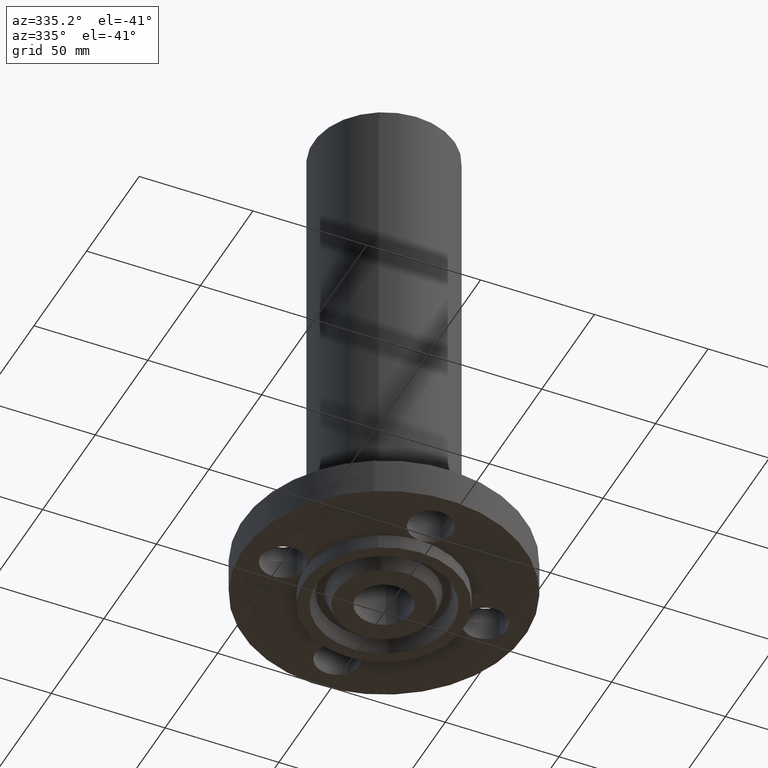
[diagram: clean part render]
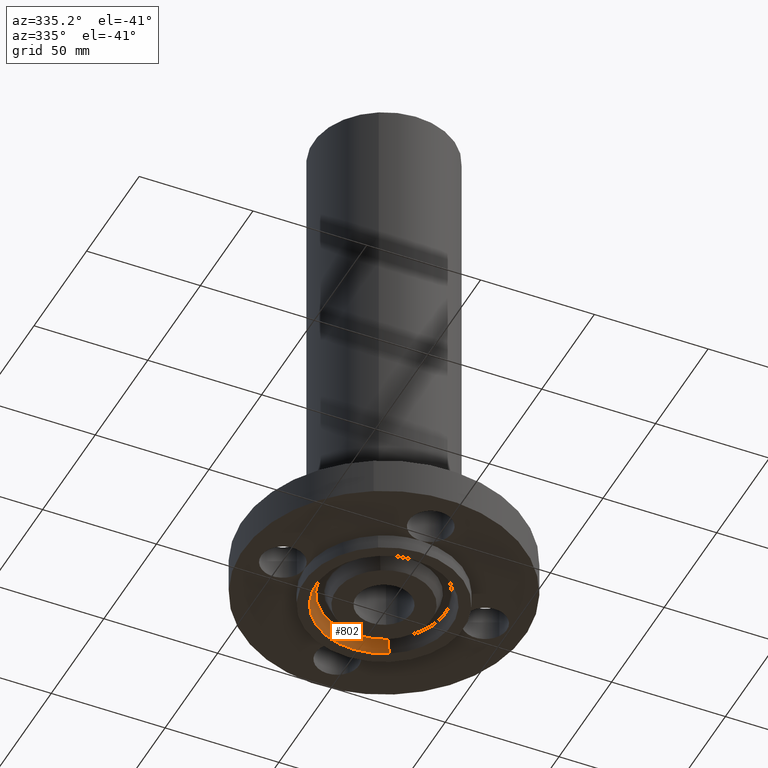
[diagram: same view with one face highlighted and labeled with its STEP entity id]
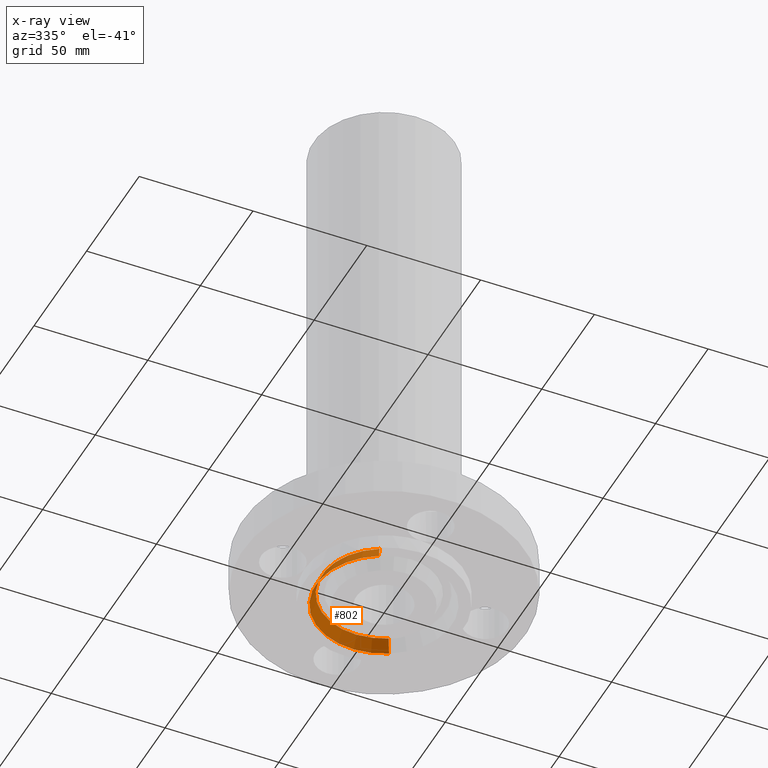
[diagram: x-ray of the same camera — body ghosted, the highlighted face saturated]
A machine part, auxiliary view. The second image highlights one B-rep face of the part: STEP entity #802.
The next image is the same camera in x-ray: the body ghosted, the highlighted face saturated — about 0% of this face is hidden behind the body in this view.
In plain terms, the highlighted conical surface has half-angle 23 deg.
Its self-contained STEP definition (entity closure, byte-faithful):
#743=AXIS2_PLACEMENT_3D('Circle Axis2P3D',#741,#742,$) ;
#775=AXIS2_PLACEMENT_3D('Cone Axis2P3D',#772,#773,#774) ;
#786=AXIS2_PLACEMENT_3D('Circle Axis2P3D',#784,#785,$) ;
#738=CARTESIAN_POINT('Vertex',(-0.514854363898,-0.942434591585,-0.0188873350169)) ;
#741=CARTESIAN_POINT('Axis2P3D Location',(0.,0.,-0.0188873350169)) ;
#745=CARTESIAN_POINT('Vertex',(0.514854363898,0.942434591585,-0.0188873350169)) ;
#772=CARTESIAN_POINT('Axis2P3D Location',(0.,0.,-0.0188873350169)) ;
#777=CARTESIAN_POINT('Line Origine',(-0.538370547572,-0.985480677062,-0.134443667509)) ;
#781=CARTESIAN_POINT('Vertex',(-0.561886731246,-1.02852676254,-0.250000000001)) ;
#784=CARTESIAN_POINT('Axis2P3D Location',(0.,0.,-0.250000000001)) ;
#788=CARTESIAN_POINT('Vertex',(0.561886731246,1.02852676254,-0.250000000001)) ;
#791=CARTESIAN_POINT('Line Origine',(0.538370547572,0.985480677062,-0.134443667509)) ;
#742=DIRECTION('Axis2P3D Direction',(0.,0.,-0.0393700787402)) ;
#773=DIRECTION('Axis2P3D Direction',(0.,0.,-0.0393700787402)) ;
#774=DIRECTION('Axis2P3D XDirection',(0.0188750212049,0.0345504945626,0.)) ;
#778=DIRECTION('Vector Direction',(-0.00737505833565,-0.0134999537303,-0.0362403485611)) ;
#785=DIRECTION('Axis2P3D Direction',(0.,0.,-0.0393700787402)) ;
#792=DIRECTION('Vector Direction',(0.00737505833565,0.0134999537303,-0.0362403485611)) ;
#779=VECTOR('Line Direction',#778,0.0393700787402) ;
#793=VECTOR('Line Direction',#792,0.0393700787402) ;
#797=ORIENTED_EDGE('',*,*,#747,.F.) ;
#798=ORIENTED_EDGE('',*,*,#783,.T.) ;
#799=ORIENTED_EDGE('',*,*,#790,.T.) ;
#800=ORIENTED_EDGE('',*,*,#795,.F.) ;
#802=ADVANCED_FACE('PartBody',(#801),#776,.F.) ;
#744=CIRCLE('generated circle',#743,1.07389849401) ;
#787=CIRCLE('generated circle',#786,1.172) ;
#776=CONICAL_SURFACE('Cone',#775,1.07389849401,0.401425727959) ;
#747=EDGE_CURVE('',#739,#746,#744,.T.) ;
#783=EDGE_CURVE('',#739,#782,#780,.T.) ;
#790=EDGE_CURVE('',#782,#789,#787,.T.) ;
#795=EDGE_CURVE('',#746,#789,#794,.T.) ;
#796=EDGE_LOOP('',(#797,#798,#799,#800)) ;
#801=FACE_OUTER_BOUND('',#796,.T.) ;
#780=LINE('Line',#777,#779) ;
#794=LINE('Line',#791,#793) ;
#739=VERTEX_POINT('',#738) ;
#746=VERTEX_POINT('',#745) ;
#782=VERTEX_POINT('',#781) ;
#789=VERTEX_POINT('',#788) ;